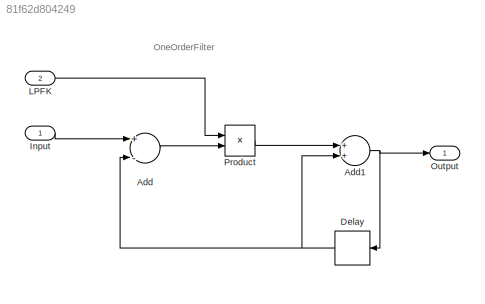
MODEL slx_81f62d804249
KIND model
BLOCK [Sum] Add
  InputSameDT = off
  Inputs = +-
  OutDataTypeStr = Inherit: Inherit via internal rule
  Ports = [2, 1]
  SaturateOnIntegerOverflow = off
BLOCK [Sum] Add1
  InputSameDT = off
  OutDataTypeStr = Inherit: Inherit via internal rule
  Ports = [2, 1]
  SaturateOnIntegerOverflow = off
BLOCK [Delay] Delay
  DelayLength = 1
  InitialCondition = 0
  InputPortMap = u0
  Ports = [1, 1]
BLOCK [Inport] Input
  IconDisplay = Port number
BLOCK [Inport] LPFK
  IconDisplay = Port number
  Port = 2
BLOCK [Outport] Output
  IconDisplay = Port number
BLOCK [Product] Product
  InputSameDT = off
  OutDataTypeStr = Inherit: Inherit via internal rule
  Ports = [2, 1]
  RndMeth = Floor
  SaturateOnIntegerOverflow = off
ANNOTATION (root): OneOrderFilter
NET Add1:1 -> Delay:1, Output:1
LINE Add:1 -> Product:2
NET Delay:1 -> Add1:2, Add:2
LINE Input:1 -> Add:1
LINE LPFK:1 -> Product:1
LINE Product:1 -> Add1:1
note: NET lines group one-source signal fan-out (src -> all destinations, sorted); 1:1 wires keep LINE
